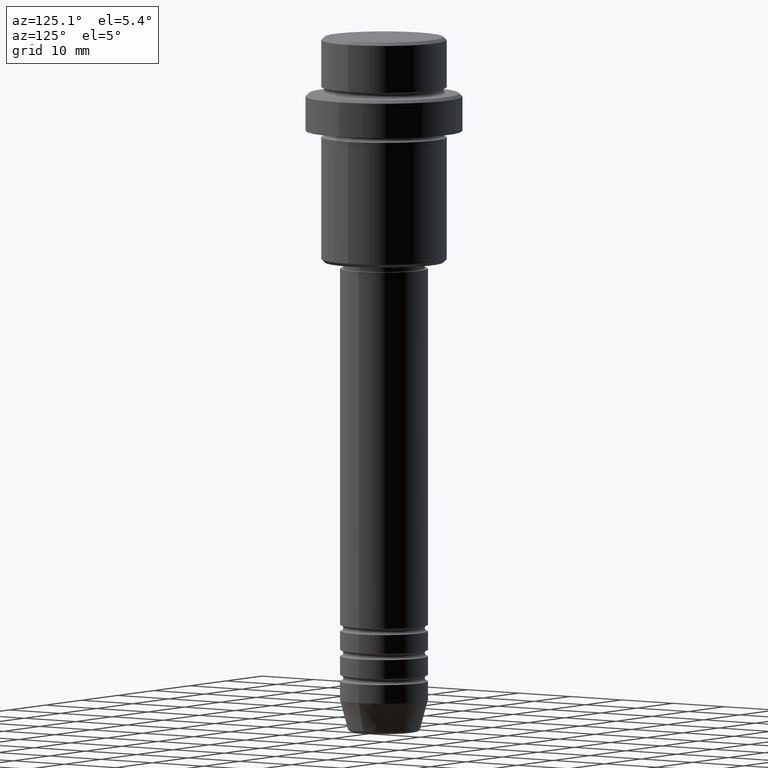
[diagram: clean part render]
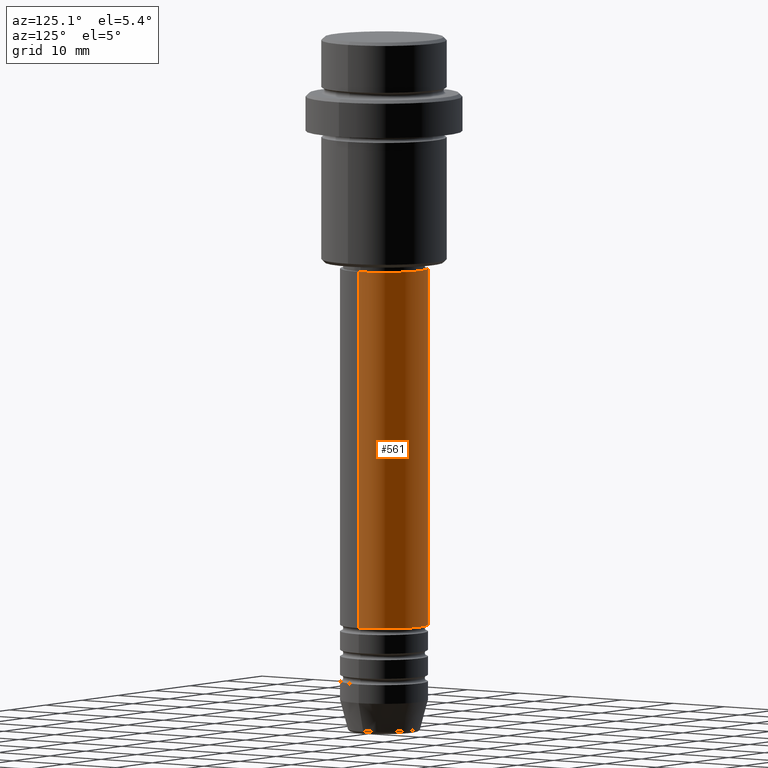
[diagram: same view with one face highlighted and labeled with its STEP entity id]
A machine part, auxiliary view. The second image highlights one B-rep face of the part: STEP entity #561.
In plain terms, the highlighted cylindrical surface (partial cylindrical patch) has radius 7 mm, axis along (-0, -0, 1).
Its self-contained STEP definition (entity closure, byte-faithful):
#20 = EDGE_CURVE ( 'NONE', #995, #436, #1402, .T. ) ;
#30 = AXIS2_PLACEMENT_3D ( 'NONE', #110, #431, #766 ) ;
#70 = DIRECTION ( 'NONE',  ( 1.000000000000000000, 0.000000000000000000, 0.000000000000000000 ) ) ;
#110 = CARTESIAN_POINT ( 'NONE',  ( 0.000000000000000000, 0.000000000000000000, -37.00000000000002132 ) ) ;
#137 = ORIENTED_EDGE ( 'NONE', *, *, #20, .F. ) ;
#141 = CARTESIAN_POINT ( 'NONE',  ( -7.000000000000000000, 8.572527594031473190E-16, -37.00000000000002132 ) ) ;
#151 = LINE ( 'NONE', #1263, #427 ) ;
#172 = CARTESIAN_POINT ( 'NONE',  ( 7.000000000000000000, 0.000000000000000000, -93.99999999999988631 ) ) ;
#219 = FACE_OUTER_BOUND ( 'NONE', #1113, .T. ) ;
#232 = CARTESIAN_POINT ( 'NONE',  ( 7.000000000000000000, 0.000000000000000000, -37.00000000000002132 ) ) ;
#424 = DIRECTION ( 'NONE',  ( -0.000000000000000000, -0.000000000000000000, 1.000000000000000000 ) ) ;
#427 = VECTOR ( 'NONE', #790, 1000.000000000000000 ) ;
#431 = DIRECTION ( 'NONE',  ( -0.000000000000000000, -0.000000000000000000, 1.000000000000000000 ) ) ;
#436 = VERTEX_POINT ( 'NONE', #141 ) ;
#477 = ORIENTED_EDGE ( 'NONE', *, *, #578, .T. ) ;
#487 = CARTESIAN_POINT ( 'NONE',  ( 0.000000000000000000, 0.000000000000000000, -93.99999999999988631 ) ) ;
#497 = AXIS2_PLACEMENT_3D ( 'NONE', #738, #600, #880 ) ;
#561 = ADVANCED_FACE ( 'NONE', ( #219 ), #1389, .T. ) ;
#578 = EDGE_CURVE ( 'NONE', #831, #436, #1102, .T. ) ;
#598 = DIRECTION ( 'NONE',  ( -0.000000000000000000, -0.000000000000000000, 1.000000000000000000 ) ) ;
#600 = DIRECTION ( 'NONE',  ( -0.000000000000000000, -0.000000000000000000, 1.000000000000000000 ) ) ;
#654 = VERTEX_POINT ( 'NONE', #172 ) ;
#738 = CARTESIAN_POINT ( 'NONE',  ( 0.000000000000000000, 0.000000000000000000, 0.000000000000000000 ) ) ;
#740 = ORIENTED_EDGE ( 'NONE', *, *, #1252, .T. ) ;
#766 = DIRECTION ( 'NONE',  ( 1.000000000000000000, 0.000000000000000000, 0.000000000000000000 ) ) ;
#790 = DIRECTION ( 'NONE',  ( -0.000000000000000000, -0.000000000000000000, 1.000000000000000000 ) ) ;
#831 = VERTEX_POINT ( 'NONE', #946 ) ;
#880 = DIRECTION ( 'NONE',  ( 1.000000000000000000, 0.000000000000000000, 0.000000000000000000 ) ) ;
#946 = CARTESIAN_POINT ( 'NONE',  ( -7.000000000000000000, 8.572527594031473190E-16, -93.99999999999988631 ) ) ;
#981 = AXIS2_PLACEMENT_3D ( 'NONE', #487, #598, #70 ) ;
#995 = VERTEX_POINT ( 'NONE', #232 ) ;
#999 = CARTESIAN_POINT ( 'NONE',  ( -7.000000000000000000, 8.572527594031473190E-16, 0.000000000000000000 ) ) ;
#1102 = LINE ( 'NONE', #999, #1403 ) ;
#1113 = EDGE_LOOP ( 'NONE', ( #740, #477, #137, #1287 ) ) ;
#1140 = EDGE_CURVE ( 'NONE', #654, #995, #151, .T. ) ;
#1252 = EDGE_CURVE ( 'NONE', #654, #831, #1374, .T. ) ;
#1263 = CARTESIAN_POINT ( 'NONE',  ( 7.000000000000000000, 0.000000000000000000, 0.000000000000000000 ) ) ;
#1287 = ORIENTED_EDGE ( 'NONE', *, *, #1140, .F. ) ;
#1374 = CIRCLE ( 'NONE', #981, 7.000000000000000000 ) ;
#1389 = CYLINDRICAL_SURFACE ( 'NONE', #497, 7.000000000000000000 ) ;
#1402 = CIRCLE ( 'NONE', #30, 7.000000000000000000 ) ;
#1403 = VECTOR ( 'NONE', #424, 1000.000000000000000 ) ;